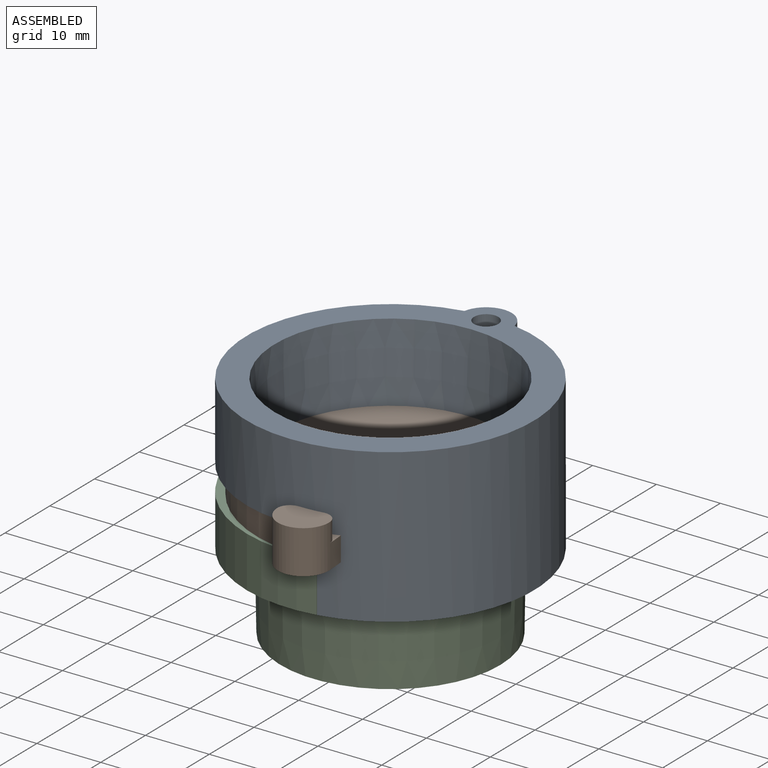
[diagram: assembled view]
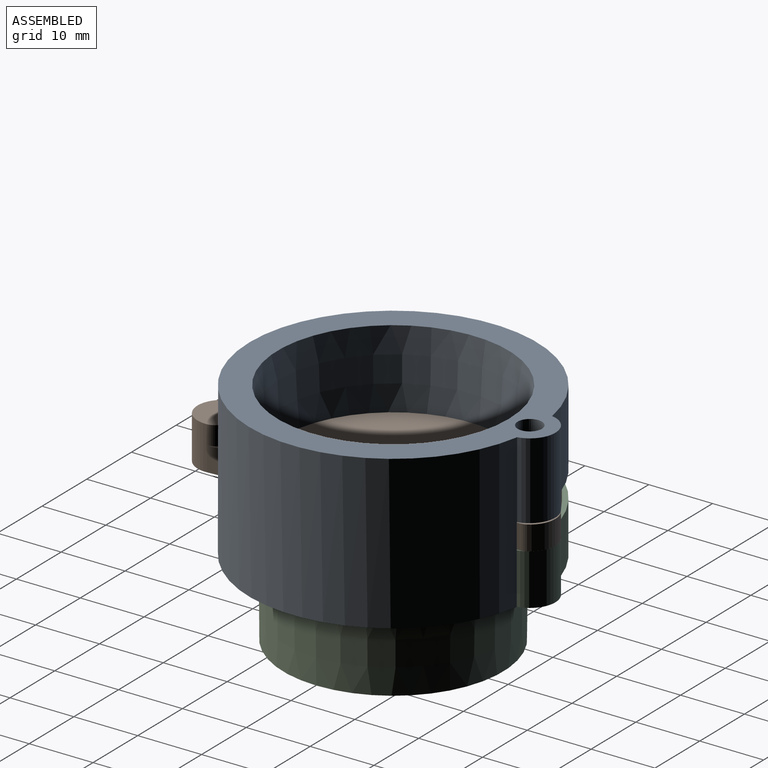
[diagram: assembled view, second angle]
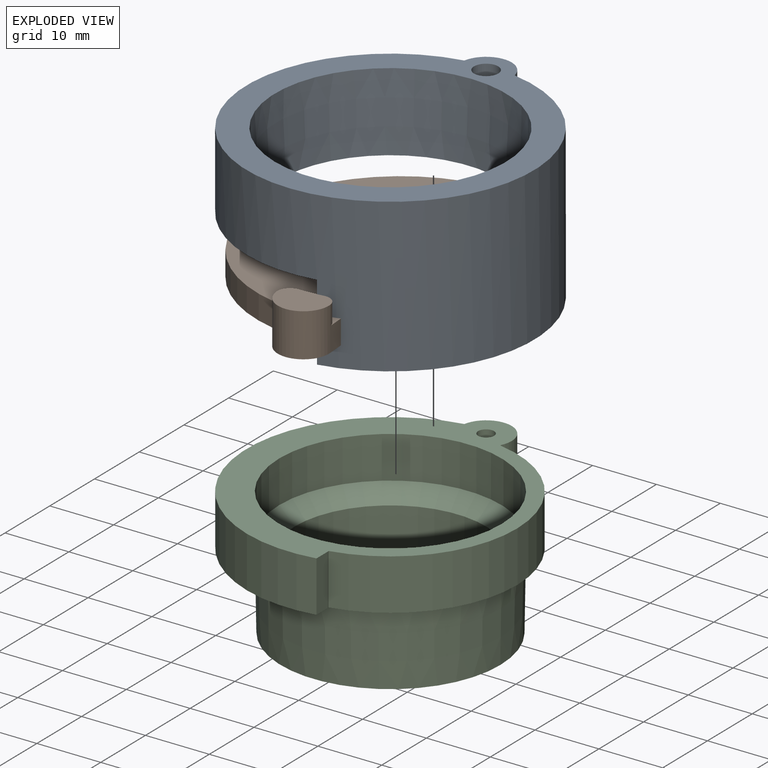
[diagram: exploded view]
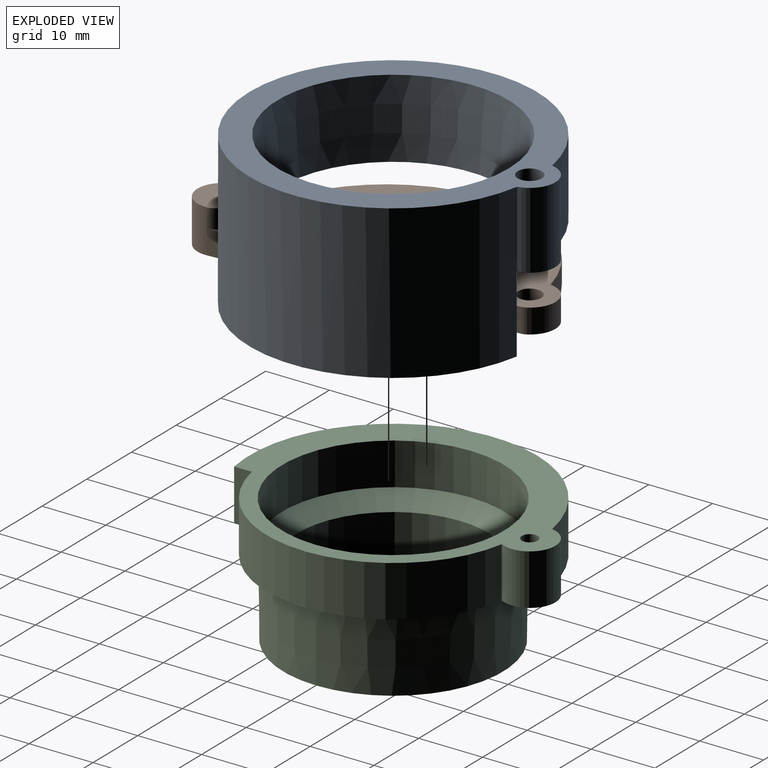
[diagram: exploded view, second angle]
ASSEMBLY  parts=3 mates=2
PART A: 12 faces, bbox 47.9x45x24 mm
  f0: cylinder r=17.4mm len=33.87mm, axis (0,0,-1), area 186.4mm2, adj f1,f3,f10,f11
  f1: plane 39.29x16.05mm, normal (0,0,1), area 134.5mm2, adj f0,f2,f3,f10
  f2: cylinder r=20.05mm len=39.29mm, axis (0,0,1), area 439.5mm2, adj f1,f3,f4,f10
  f3: plane 12x5.21mm, normal (0,-1,0), area 40.8mm2, adj f0,f1,f2,f4,f6,f8
  f4: plane 44.28x18.5mm, normal (0,0,1), area 144mm2, adj f2,f3,f8,f10
  f5: cylinder r=4mm len=12mm, axis (0,0,-1), area 132.6mm2, adj f6,f7,f8
  f6: plane 47.9x26.5mm, normal (0,0,1), area 366.7mm2, adj f3,f5,f8,f9,f10,f11
  f7: plane 47.9x45mm, normal (0,0,-1), area 567.2mm2, adj f5,f8,f9,f11
  f8: cylinder r=22.5mm len=45mm, axis (0,0,-1), area 2353.4mm2, adj f3,f4,f5,f6,f7,f10
  f9: cylinder r=1.9mm len=12mm, axis (0,0,-1), area 143.3mm2, adj f6,f7
  f10: plane 12x5.21mm, normal (0,-1,0), area 40.8mm2, adj f0,f1,f2,f4,f6,f8
  f11: cone r=18.1mm half-angle=3.3deg, axis (0,0,-1), area 1340.6mm2, adj f0,f6,f7
PART B: 15 faces, bbox 53.8x39.7x6.8 mm
  f0: plane 53.8x39.7mm, normal (0,0,-1), area 1349.4mm2, adj f2,f3,f4,f5,f6,f9,f10,f11
  f1: plane 49.84x39.7mm, normal (0,0,1), area 1310.4mm2, adj f2,f3,f4,f5,f6,f7,f9,f10
  f2: cylinder r=4mm len=8mm, axis (0,0,-1), area 93.9mm2, adj f0,f1,f3,f5,f8,f13,f14
  f3: plane 7.47x3.8mm, normal (0,-1,0), area 28.4mm2, adj f0,f1,f2,f9
  f4: cylinder r=4mm len=7.54mm, axis (0,0,-1), area 38.1mm2, adj f0,f1,f5,f12
  f5: cylinder r=22.5mm len=44.4mm, axis (0,0,-1), area 240.7mm2, adj f0,f1,f2,f4
  f6: cylinder r=1.8mm len=3.8mm, axis (0,0,1), area 43mm2, adj f0,f1
  f7: cylinder r=22.5mm len=3.67mm, axis (0,0,-1), area 11mm2, adj f1,f8,f13,f14
  f8: plane 8x5.98mm, normal (0,0,1), area 39.1mm2, adj f2,f7,f13,f14
  f9: plane 3.8x0.19mm, normal (0.23,-0.97,0), area 0.8mm2, adj f0,f1,f3,f11
  f10: plane 5.61x3.8mm, normal (0,-1,0), area 21.3mm2, adj f0,f1,f11,f12
  f11: cylinder r=17.2mm len=33.51mm, axis (0,0,-1), area 175.6mm2, adj f0,f1,f9,f10
  f12: cylinder r=2mm len=3.8mm, axis (0,0,1), area 2.9mm2, adj f0,f1,f4,f10
  f13: cylinder r=2mm len=3mm, axis (0,0,1), area 10mm2, adj f1,f2,f7,f8
  f14: cylinder r=2mm len=3mm, axis (0,0,1), area 10mm2, adj f1,f2,f7,f8
PART C: 14 faces, bbox 42.3x47.9x20 mm
  f0: plane 47.92x42.32mm, normal (0,0,-1), area 493.4mm2, adj f1,f7,f8,f9,f10,f11,f12,f13
  f1: cylinder r=4mm len=8mm, axis (0,0,-1), area 108.8mm2, adj f0,f3,f8,f10
  f2: cylinder r=17.4mm len=34.8mm, axis (0,0,-1), area 721.6mm2, adj f3,f6
  f3: plane 47.9x42.3mm, normal (0,0,1), area 493.5mm2, adj f1,f2,f7,f8,f9,f10,f11,f12
  f4: cylinder r=15mm len=30mm, axis (0,0,-1), area 1036.7mm2, adj f5,f6
  f5: plane 34.4x34.4mm, normal (0,0,-1), area 222.5mm2, adj f4,f13
  f6: cone r=18mm half-angle=45deg, axis (0,0,1), area 345.5mm2, adj f2,f4
  f7: plane 8x2.54mm, normal (1,0,0), area 20.4mm2, adj f0,f3,f8,f11
  f8: cylinder r=22.5mm len=44.65mm, axis (0,0,-1), area 565.5mm2, adj f0,f1,f3,f7
  f9: cylinder r=1.25mm len=8mm, axis (0,0,1), area 62.8mm2, adj f0,f3
  f10: plane 8x0.2mm, normal (0.98,-0.18,0), area 1.6mm2, adj f0,f1,f3,f12
  f11: plane 8x0.2mm, normal (0.98,0.2,0), area 1.6mm2, adj f0,f3,f7,f12
  f12: cylinder r=19.8mm len=38.89mm, axis (0,0,-1), area 437.6mm2, adj f0,f3,f10,f11
  f13: cone r=17.2mm half-angle=1deg, axis (0,0,1), area 1305.7mm2, adj f0,f5
PLACE A rot(axis=(0.71,0.71,0),180deg) t=(-10.7,-8.49,25.87)mm
PLACE B rot(axis=(0,0,1),94.2deg) t=(-9.13,-8.43,9.87)mm
PLACE C t=(-10.7,-8.49,1.87)mm fixed
MATE slider A.f2 <-> C.f12  axis (0,0,-1) through (-10.7,-8.49,5.87)mm
MATE revolute B.f4 <-> C.f1  axis (0,0,-1) through (-10.7,12.91,9.87)mm
